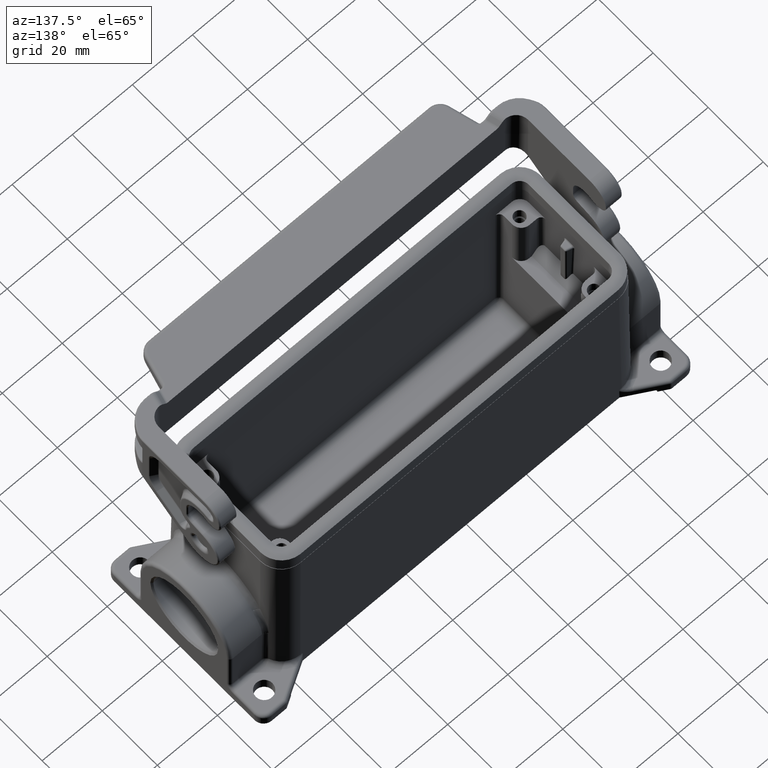
[diagram: clean part render]
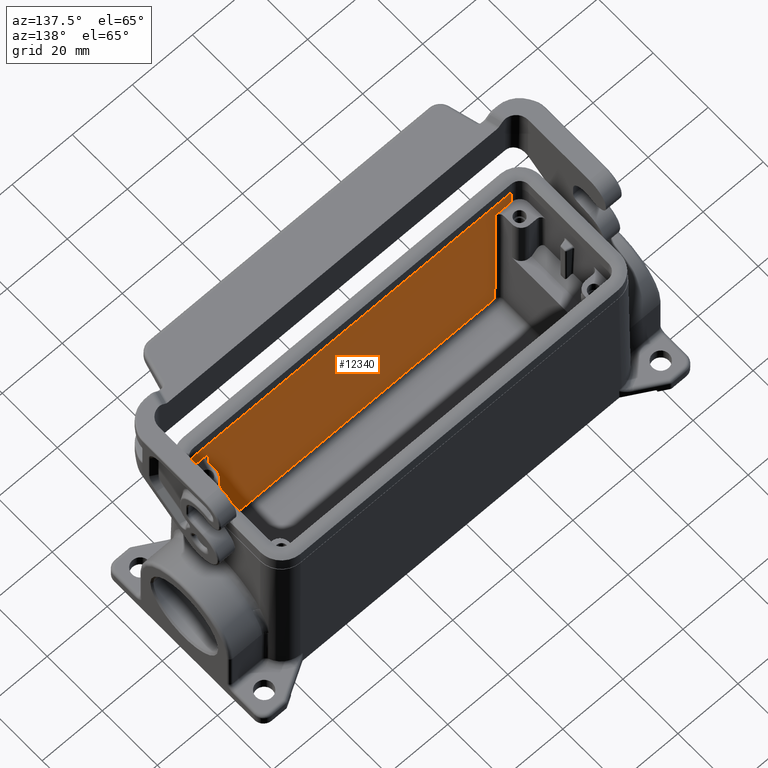
[diagram: same view with one face highlighted and labeled with its STEP entity id]
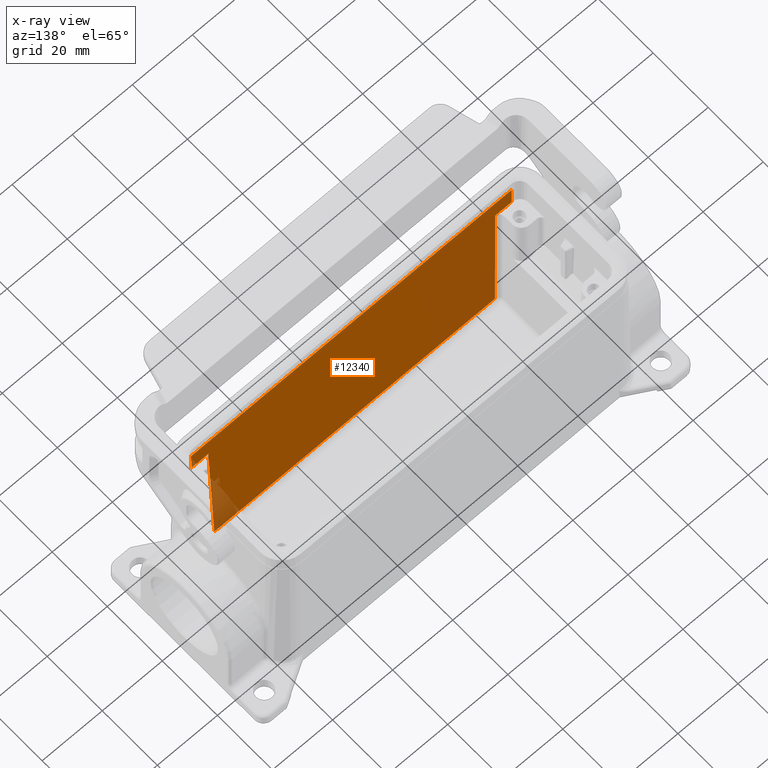
[diagram: x-ray of the same camera — body ghosted, the highlighted face saturated]
A machine part, auxiliary view. The second image highlights one B-rep face of the part: STEP entity #12340.
The next image is the same camera in x-ray: the body ghosted, the highlighted face saturated — about 3% of this face is hidden behind the body in this view.
In plain terms, the highlighted planar face has unit normal (0, 0.9997, 0.0233).
Its self-contained STEP definition (entity closure, byte-faithful):
#8540=CARTESIAN_POINT('',(-17.75,53.2508122760552,51.));
#8550=VERTEX_POINT('',#8540);
#8580=CARTESIAN_POINT('',(-16.561337348632,52.0621496246872,
-0.0698068516736021));
#8590=DIRECTION('',(0.0232626536972686,-0.0232626536972686,
-0.999458702441438));
#8600=VECTOR('',#8590,1.);
#8610=LINE('',#8580,#8600);
#8620=CARTESIAN_POINT('',(-17.9012891414752,53.4021014175304,57.5));
#8630=VERTEX_POINT('',#8620);
#8640=EDGE_CURVE('',#8630,#8550,#8610,.T.);
#11720=CARTESIAN_POINT('',(-17.75,0.,51.));
#11730=DIRECTION('',(0.999729241314835,0.,0.0232689505578674));
#11740=DIRECTION('',(0.,-1.,0.));
#11750=AXIS2_PLACEMENT_3D('',#11720,#11730,#11740);
#11760=PLANE('',#11750);
#11770=ORIENTED_EDGE('',*,*,#8640,.F.);
#11780=CARTESIAN_POINT('',(-17.75,-56.0000000000003,51.));
#11790=DIRECTION('',(0.,1.,0.));
#11800=VECTOR('',#11790,1.);
#11810=LINE('',#11780,#11800);
#11820=CARTESIAN_POINT('',(-17.75,47.7504061380275,51.));
#11830=VERTEX_POINT('',#11820);
#11840=EDGE_CURVE('',#11830,#8550,#11810,.T.);
#11850=ORIENTED_EDGE('',*,*,#11840,.T.);
#11860=CARTESIAN_POINT('',(-16.5621497346827,46.5625558727102,
-0.034903425836801));
#11870=DIRECTION('',(-0.0232626536972686,0.0232626536972686,
0.999458702441438));
#11880=VECTOR('',#11870,1.);
#11890=LINE('',#11860,#11880);
#11900=CARTESIAN_POINT('',(-16.7015304545403,46.7019365925678,
5.95346209888426));
#11910=VERTEX_POINT('',#11900);
#11920=EDGE_CURVE('',#11910,#11830,#11890,.T.);
#11930=ORIENTED_EDGE('',*,*,#11920,.T.);
#11940=CARTESIAN_POINT('',(-16.7015304545403,0.,5.95346209888426));
#11950=DIRECTION('',(0.,1.,0.));
#11960=VECTOR('',#11950,1.);
#11970=LINE('',#11940,#11960);
#11980=CARTESIAN_POINT('',(-16.7015304545403,-46.7019365925682,
5.95346209888426));
#11990=VERTEX_POINT('',#11980);
#12000=EDGE_CURVE('',#11990,#11910,#11970,.T.);
#12010=ORIENTED_EDGE('',*,*,#12000,.T.);
#12020=CARTESIAN_POINT('',(-16.5621497346827,-46.5625558727106,
-0.034903425836801));
#12030=DIRECTION('',(-0.0232626536972686,-0.0232626536972686,
0.999458702441438));
#12040=VECTOR('',#12030,1.);
#12050=LINE('',#12020,#12040);
#12060=CARTESIAN_POINT('',(-17.75,-47.7504061380279,51.));
#12070=VERTEX_POINT('',#12060);
#12080=EDGE_CURVE('',#11990,#12070,#12050,.T.);
#12090=ORIENTED_EDGE('',*,*,#12080,.F.);
#12100=CARTESIAN_POINT('',(-17.75,55.9999999999999,51.));
#12110=DIRECTION('',(0.,-1.,0.));
#12120=VECTOR('',#12110,1.);
#12130=LINE('',#12100,#12120);
#12140=CARTESIAN_POINT('',(-17.75,-53.2508122760556,51.));
#12150=VERTEX_POINT('',#12140);
#12160=EDGE_CURVE('',#12070,#12150,#12130,.T.);
#12170=ORIENTED_EDGE('',*,*,#12160,.F.);
#12180=CARTESIAN_POINT('',(-16.561337348632,-52.0621496246876,
-0.0698068516736021));
#12190=DIRECTION('',(0.0232626536972686,0.0232626536972686,
-0.999458702441438));
#12200=VECTOR('',#12190,1.);
#12210=LINE('',#12180,#12200);
#12220=CARTESIAN_POINT('',(-17.9012891414752,-53.4021014175308,
57.4999999999997));
#12230=VERTEX_POINT('',#12220);
#12240=EDGE_CURVE('',#12230,#12150,#12210,.T.);
#12250=ORIENTED_EDGE('',*,*,#12240,.T.);
#12260=CARTESIAN_POINT('',(-17.9012891414752,0.,57.4999999999999));
#12270=DIRECTION('',(5.16814425358457E-17,-1.,-2.22044604925031E-15));
#12280=VECTOR('',#12270,1.);
#12290=LINE('',#12260,#12280);
#12300=EDGE_CURVE('',#8630,#12230,#12290,.T.);
#12310=ORIENTED_EDGE('',*,*,#12300,.T.);
#12320=EDGE_LOOP('',(#12310,#12250,#12170,#12090,#12010,#11930,#11850,
#11770));
#12330=FACE_OUTER_BOUND('',#12320,.T.);
#12340=ADVANCED_FACE('',(#12330),#11760,.T.);